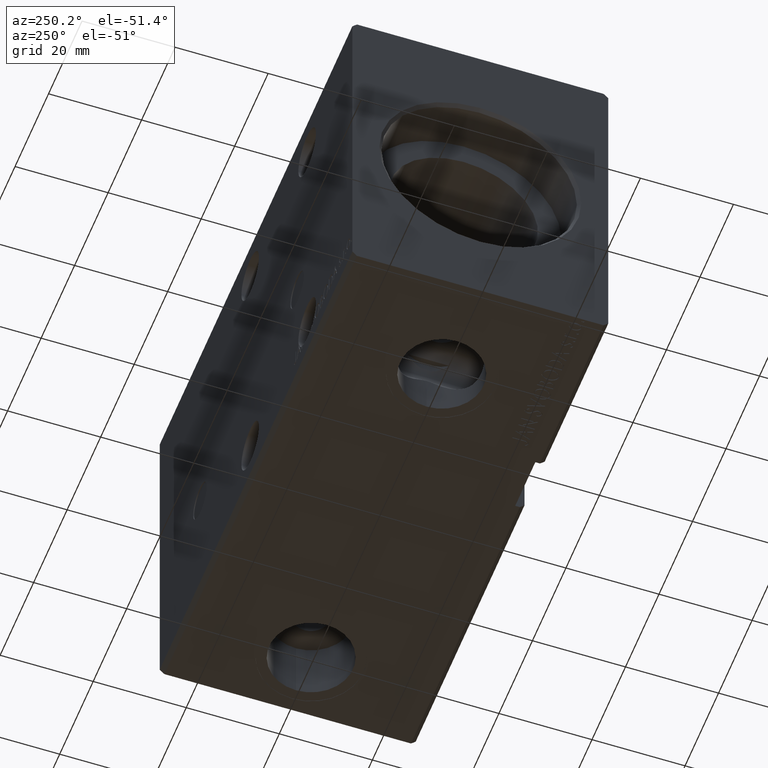
[diagram: clean part render]
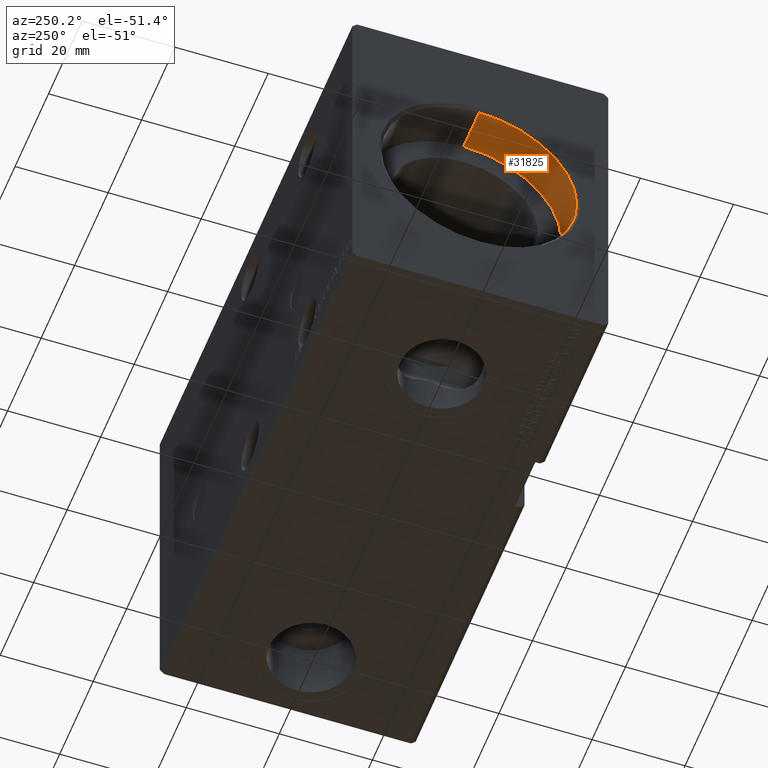
[diagram: same view with one face highlighted and labeled with its STEP entity id]
A machine part, auxiliary view. The second image highlights one B-rep face of the part: STEP entity #31825.
In plain terms, the highlighted cylindrical surface (partial cylindrical patch) has radius 21 mm, axis along (-1, -0, -0).
Its self-contained STEP definition (entity closure, byte-faithful):
#270 = CARTESIAN_POINT ( 'NONE',  ( 10.00000000000000000, 0.000000000000000000, 21.00000000000000000 ) ) ;
#420 = AXIS2_PLACEMENT_3D ( 'NONE', #471, #6638, #9430 ) ;
#471 = CARTESIAN_POINT ( 'NONE',  ( 0.7000000000000443645, 0.000000000000000000, 0.000000000000000000 ) ) ;
#609 = EDGE_CURVE ( 'NONE', #31646, #12635, #25183, .T. ) ;
#4270 = VERTEX_POINT ( 'NONE', #270 ) ;
#5596 = DIRECTION ( 'NONE',  ( 0.000000000000000000, 0.000000000000000000, 1.000000000000000000 ) ) ;
#6638 = DIRECTION ( 'NONE',  ( -1.000000000000000000, 0.000000000000000000, 0.000000000000000000 ) ) ;
#7638 = VECTOR ( 'NONE', #19803, 1000.000000000000000 ) ;
#8189 = DIRECTION ( 'NONE',  ( -1.000000000000000000, -0.000000000000000000, -0.000000000000000000 ) ) ;
#8402 = CARTESIAN_POINT ( 'NONE',  ( 10.00000000000000000, 0.000000000000000000, 0.000000000000000000 ) ) ;
#9430 = DIRECTION ( 'NONE',  ( 0.000000000000000000, 0.000000000000000000, -1.000000000000000000 ) ) ;
#9829 = ORIENTED_EDGE ( 'NONE', *, *, #21429, .T. ) ;
#12635 = VERTEX_POINT ( 'NONE', #17622 ) ;
#13147 = CIRCLE ( 'NONE', #420, 21.00000000000000000 ) ;
#13853 = ORIENTED_EDGE ( 'NONE', *, *, #609, .T. ) ;
#14404 = AXIS2_PLACEMENT_3D ( 'NONE', #8402, #23541, #20943 ) ;
#14551 = CYLINDRICAL_SURFACE ( 'NONE', #19718, 21.00000000000000000 ) ;
#14612 = LINE ( 'NONE', #37965, #7638 ) ;
#15526 = EDGE_CURVE ( 'NONE', #31646, #4270, #15674, .T. ) ;
#15674 = CIRCLE ( 'NONE', #14404, 21.00000000000000000 ) ;
#15824 = DIRECTION ( 'NONE',  ( -1.000000000000000000, -0.000000000000000000, -0.000000000000000000 ) ) ;
#17376 = VERTEX_POINT ( 'NONE', #28263 ) ;
#17622 = CARTESIAN_POINT ( 'NONE',  ( 0.7000000000000443645, 2.571758278209441661E-15, -21.00000000000000000 ) ) ;
#18803 = CARTESIAN_POINT ( 'NONE',  ( 10.00000000000000000, 2.571758278209441661E-15, -21.00000000000000000 ) ) ;
#19718 = AXIS2_PLACEMENT_3D ( 'NONE', #20531, #8189, #5596 ) ;
#19803 = DIRECTION ( 'NONE',  ( -1.000000000000000000, -0.000000000000000000, -0.000000000000000000 ) ) ;
#20531 = CARTESIAN_POINT ( 'NONE',  ( 10.00000000000000000, 0.000000000000000000, 0.000000000000000000 ) ) ;
#20943 = DIRECTION ( 'NONE',  ( 0.000000000000000000, 0.000000000000000000, 1.000000000000000000 ) ) ;
#21429 = EDGE_CURVE ( 'NONE', #12635, #17376, #13147, .T. ) ;
#21883 = ORIENTED_EDGE ( 'NONE', *, *, #36288, .F. ) ;
#23523 = FACE_OUTER_BOUND ( 'NONE', #38128, .T. ) ;
#23541 = DIRECTION ( 'NONE',  ( -1.000000000000000000, 0.000000000000000000, 0.000000000000000000 ) ) ;
#25183 = LINE ( 'NONE', #18803, #34056 ) ;
#26252 = ORIENTED_EDGE ( 'NONE', *, *, #15526, .F. ) ;
#27535 = CARTESIAN_POINT ( 'NONE',  ( 10.00000000000000000, 2.571758278209441661E-15, -21.00000000000000000 ) ) ;
#28263 = CARTESIAN_POINT ( 'NONE',  ( 0.7000000000000443645, 0.000000000000000000, 21.00000000000000000 ) ) ;
#31646 = VERTEX_POINT ( 'NONE', #27535 ) ;
#31825 = ADVANCED_FACE ( 'NONE', ( #23523 ), #14551, .F. ) ;
#34056 = VECTOR ( 'NONE', #15824, 1000.000000000000000 ) ;
#36288 = EDGE_CURVE ( 'NONE', #4270, #17376, #14612, .T. ) ;
#37965 = CARTESIAN_POINT ( 'NONE',  ( 10.00000000000000000, 0.000000000000000000, 21.00000000000000000 ) ) ;
#38128 = EDGE_LOOP ( 'NONE', ( #26252, #13853, #9829, #21883 ) ) ;